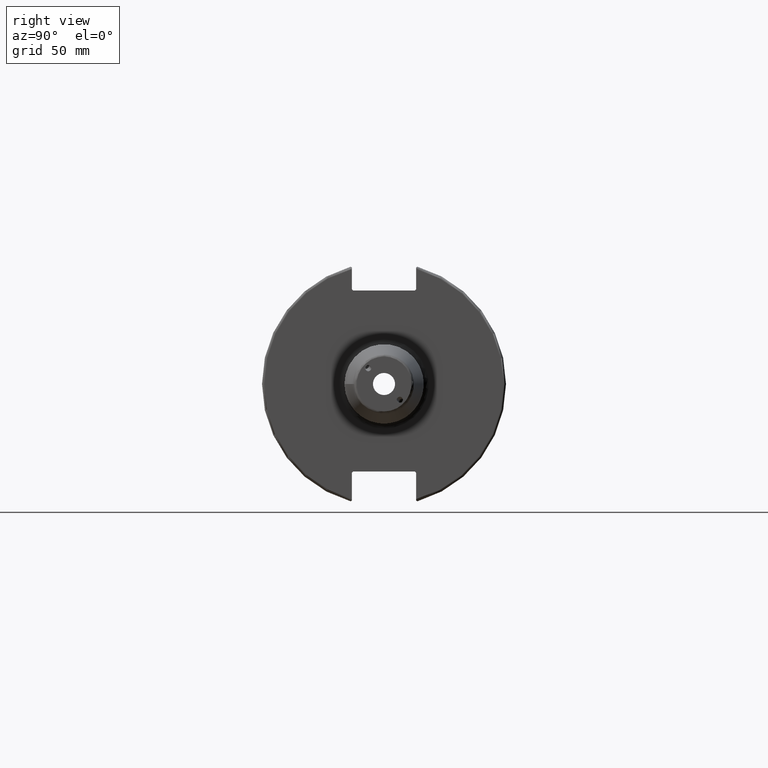
[diagram: clean part render]
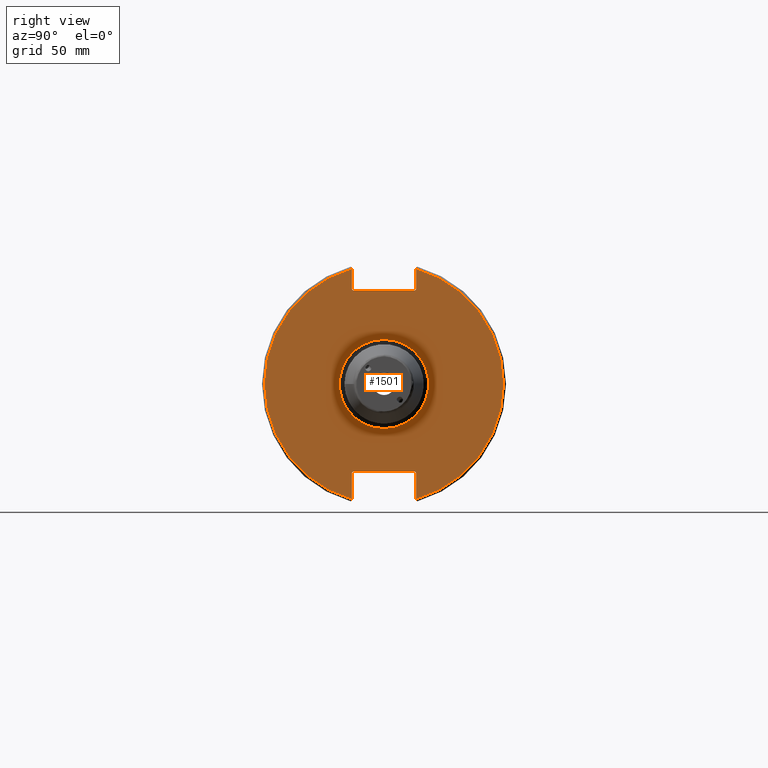
[diagram: same view with one face highlighted and labeled with its STEP entity id]
A machine part, right view. The second image highlights one B-rep face of the part: STEP entity #1501.
In plain terms, the highlighted planar face has unit normal (1, 0, 0).
Its self-contained STEP definition (entity closure, byte-faithful):
#72=FACE_BOUND('',#271,.T.);
#92=PLANE('',#1627);
#178=FACE_OUTER_BOUND('',#270,.T.);
#270=EDGE_LOOP('',(#1057,#1058,#1059,#1060,#1061,#1062,#1063,#1064,#1065,
#1066,#1067,#1068));
#271=EDGE_LOOP('',(#1069));
#375=LINE('',#2255,#471);
#376=LINE('',#2257,#472);
#377=LINE('',#2259,#473);
#378=LINE('',#2261,#474);
#379=LINE('',#2263,#475);
#380=LINE('',#2267,#476);
#381=LINE('',#2269,#477);
#382=LINE('',#2271,#478);
#383=LINE('',#2273,#479);
#384=LINE('',#2274,#480);
#471=VECTOR('',#1830,10.);
#472=VECTOR('',#1831,10.);
#473=VECTOR('',#1832,10.);
#474=VECTOR('',#1833,10.);
#475=VECTOR('',#1834,10.);
#476=VECTOR('',#1837,10.);
#477=VECTOR('',#1838,10.);
#478=VECTOR('',#1839,10.);
#479=VECTOR('',#1840,10.);
#480=VECTOR('',#1841,10.);
#571=CIRCLE('',#1624,18.);
#573=CIRCLE('',#1628,48.2125);
#574=CIRCLE('',#1629,48.2125);
#649=VERTEX_POINT('',#2244);
#650=VERTEX_POINT('',#2251);
#651=VERTEX_POINT('',#2252);
#652=VERTEX_POINT('',#2254);
#653=VERTEX_POINT('',#2256);
#654=VERTEX_POINT('',#2258);
#655=VERTEX_POINT('',#2260);
#656=VERTEX_POINT('',#2262);
#657=VERTEX_POINT('',#2264);
#658=VERTEX_POINT('',#2266);
#659=VERTEX_POINT('',#2268);
#660=VERTEX_POINT('',#2270);
#661=VERTEX_POINT('',#2272);
#807=EDGE_CURVE('',#649,#649,#571,.T.);
#810=EDGE_CURVE('',#650,#651,#573,.T.);
#811=EDGE_CURVE('',#650,#652,#375,.T.);
#812=EDGE_CURVE('',#653,#652,#376,.T.);
#813=EDGE_CURVE('',#653,#654,#377,.T.);
#814=EDGE_CURVE('',#655,#654,#378,.T.);
#815=EDGE_CURVE('',#655,#656,#379,.T.);
#816=EDGE_CURVE('',#657,#656,#574,.T.);
#817=EDGE_CURVE('',#657,#658,#380,.T.);
#818=EDGE_CURVE('',#659,#658,#381,.T.);
#819=EDGE_CURVE('',#659,#660,#382,.T.);
#820=EDGE_CURVE('',#661,#660,#383,.T.);
#821=EDGE_CURVE('',#661,#651,#384,.T.);
#1057=ORIENTED_EDGE('',*,*,#810,.F.);
#1058=ORIENTED_EDGE('',*,*,#811,.T.);
#1059=ORIENTED_EDGE('',*,*,#812,.F.);
#1060=ORIENTED_EDGE('',*,*,#813,.T.);
#1061=ORIENTED_EDGE('',*,*,#814,.F.);
#1062=ORIENTED_EDGE('',*,*,#815,.T.);
#1063=ORIENTED_EDGE('',*,*,#816,.F.);
#1064=ORIENTED_EDGE('',*,*,#817,.T.);
#1065=ORIENTED_EDGE('',*,*,#818,.F.);
#1066=ORIENTED_EDGE('',*,*,#819,.T.);
#1067=ORIENTED_EDGE('',*,*,#820,.F.);
#1068=ORIENTED_EDGE('',*,*,#821,.T.);
#1069=ORIENTED_EDGE('',*,*,#807,.F.);
#1501=ADVANCED_FACE('',(#178,#72),#92,.T.);
#1624=AXIS2_PLACEMENT_3D('',#2246,#1819,#1820);
#1627=AXIS2_PLACEMENT_3D('',#2250,#1826,#1827);
#1628=AXIS2_PLACEMENT_3D('',#2253,#1828,#1829);
#1629=AXIS2_PLACEMENT_3D('',#2265,#1835,#1836);
#1819=DIRECTION('center_axis',(1.,0.,0.));
#1820=DIRECTION('ref_axis',(0.,-1.,-1.22464679914735E-16));
#1826=DIRECTION('center_axis',(1.,0.,0.));
#1827=DIRECTION('ref_axis',(0.,0.,-1.));
#1828=DIRECTION('center_axis',(-1.,0.,0.));
#1829=DIRECTION('ref_axis',(0.,1.,-6.12323399573677E-17));
#1830=DIRECTION('',(0.,0.,-1.));
#1831=DIRECTION('',(0.,0.707106781186549,0.707106781186546));
#1832=DIRECTION('',(0.,-1.,0.));
#1833=DIRECTION('',(0.,0.707106781186549,-0.707106781186546));
#1834=DIRECTION('',(0.,0.,1.));
#1835=DIRECTION('center_axis',(-1.,0.,0.));
#1836=DIRECTION('ref_axis',(0.,-1.,1.60812264967664E-16));
#1837=DIRECTION('',(0.,0.,1.));
#1838=DIRECTION('',(0.,-0.707106781186549,-0.707106781186546));
#1839=DIRECTION('',(0.,1.,0.));
#1840=DIRECTION('',(0.,-0.707106781186549,0.707106781186546));
#1841=DIRECTION('',(0.,0.,-1.));
#2244=CARTESIAN_POINT('',(19.05,-2.20436423846524E-15,-18.));
#2246=CARTESIAN_POINT('Origin',(19.05,0.,0.));
#2250=CARTESIAN_POINT('Origin',(19.05,0.,0.));
#2251=CARTESIAN_POINT('',(19.05,12.95,46.4407434937254));
#2252=CARTESIAN_POINT('',(19.05,12.95,-46.4407434937254));
#2253=CARTESIAN_POINT('Origin',(19.05,0.,0.));
#2254=CARTESIAN_POINT('',(19.05,12.95,38.219));
#2255=CARTESIAN_POINT('',(19.05,12.95,18.8595));
#2256=CARTESIAN_POINT('',(19.05,12.45,37.719));
#2257=CARTESIAN_POINT('',(19.05,0.0327499999999836,25.30175));
#2258=CARTESIAN_POINT('',(19.05,-12.45,37.719));
#2259=CARTESIAN_POINT('',(19.05,0.,37.719));
#2260=CARTESIAN_POINT('',(19.05,-12.95,38.219));
#2261=CARTESIAN_POINT('',(19.05,-0.0327499999999817,25.30175));
#2262=CARTESIAN_POINT('',(19.05,-12.95,46.4407434937254));
#2263=CARTESIAN_POINT('',(19.05,-12.95,18.8595));
#2264=CARTESIAN_POINT('',(19.05,-12.95,-46.4407434937254));
#2265=CARTESIAN_POINT('Origin',(19.05,0.,0.));
#2266=CARTESIAN_POINT('',(19.05,-12.95,-35.806));
#2267=CARTESIAN_POINT('',(19.05,-12.95,-17.653));
#2268=CARTESIAN_POINT('',(19.05,-12.45,-35.306));
#2269=CARTESIAN_POINT('',(19.05,-0.635999999999989,-23.492));
#2270=CARTESIAN_POINT('',(19.05,12.45,-35.306));
#2271=CARTESIAN_POINT('',(19.05,-3.33066907387547E-15,-35.306));
#2272=CARTESIAN_POINT('',(19.05,12.95,-35.806));
#2273=CARTESIAN_POINT('',(19.05,0.635999999999982,-23.492));
#2274=CARTESIAN_POINT('',(19.05,12.95,-17.653));